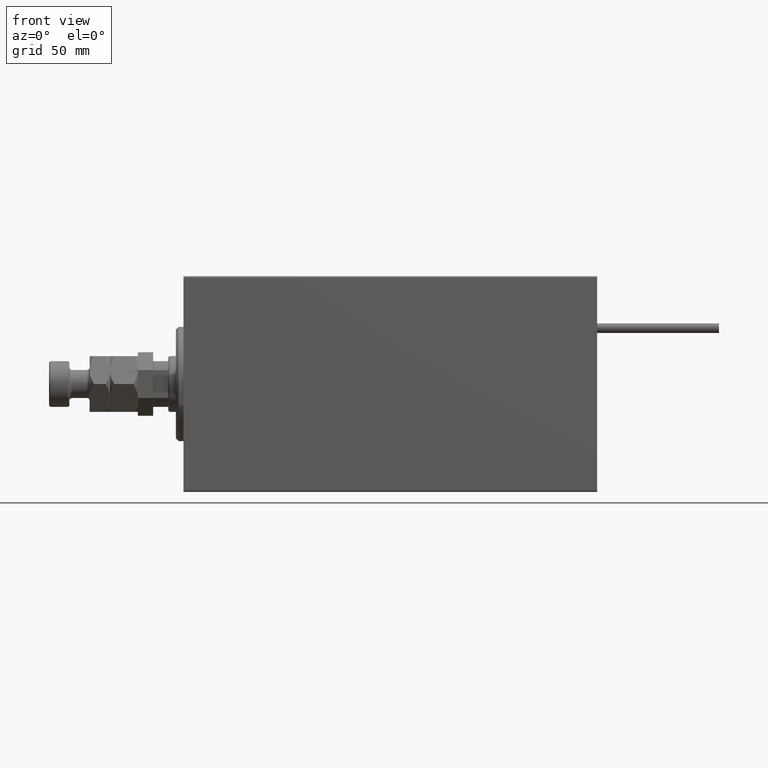
[diagram: clean part render]
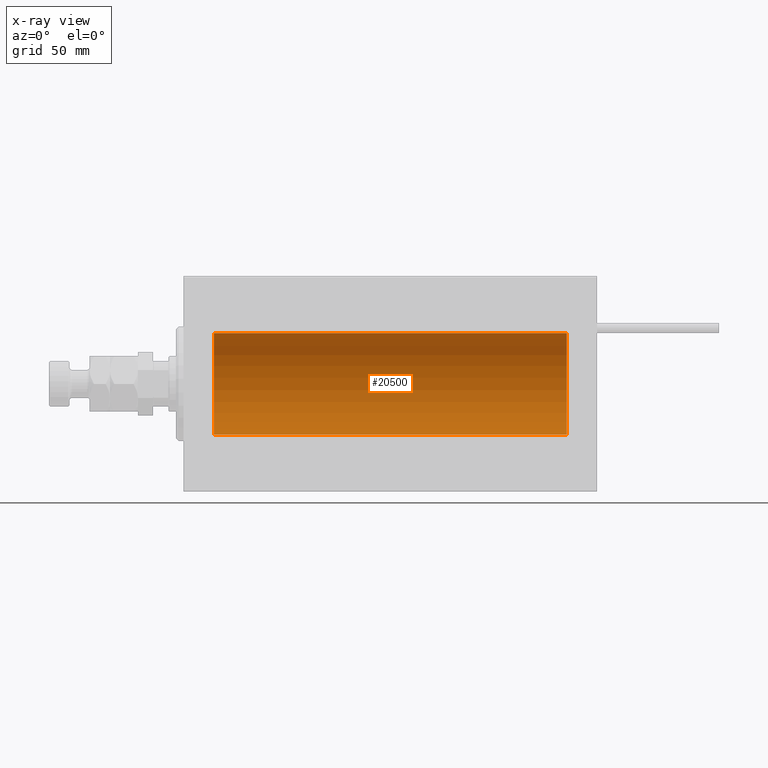
[diagram: x-ray — body ghosted, one internal face saturated and labeled with its STEP entity id]
A machine part, front view, then the same camera in x-ray: the body is ghosted and one INTERNAL B-rep face — a face not visible from any outside direction — is saturated and labeled: STEP entity #20500.
In plain terms, the highlighted cylindrical surface (partial cylindrical patch) has radius 20 mm, axis along (-1, -0, -0).
Its self-contained STEP definition (entity closure, byte-faithful):
#1322 = LINE ( 'NONE', #45768, #18485 ) ;
#2673 = ORIENTED_EDGE ( 'NONE', *, *, #51372, .F. ) ;
#2845 = DIRECTION ( 'NONE',  ( -1.000000000000000000, 0.000000000000000000, 0.000000000000000000 ) ) ;
#4320 = CARTESIAN_POINT ( 'NONE',  ( 151.0000000000000000, 0.000000000000000000, 20.00000000000000000 ) ) ;
#5158 = AXIS2_PLACEMENT_3D ( 'NONE', #40410, #36740, #29146 ) ;
#5597 = VERTEX_POINT ( 'NONE', #36177 ) ;
#6910 = ORIENTED_EDGE ( 'NONE', *, *, #33100, .T. ) ;
#8243 = FACE_OUTER_BOUND ( 'NONE', #33505, .T. ) ;
#8373 = DIRECTION ( 'NONE',  ( -1.000000000000000000, 0.000000000000000000, 0.000000000000000000 ) ) ;
#11279 = AXIS2_PLACEMENT_3D ( 'NONE', #18519, #2845, #18265 ) ;
#12691 = CIRCLE ( 'NONE', #15231, 20.00000000000000000 ) ;
#12936 = CYLINDRICAL_SURFACE ( 'NONE', #5158, 20.00000000000000000 ) ;
#14992 = EDGE_CURVE ( 'NONE', #5597, #45724, #40142, .T. ) ;
#15231 = AXIS2_PLACEMENT_3D ( 'NONE', #44205, #8373, #35591 ) ;
#18263 = VERTEX_POINT ( 'NONE', #40486 ) ;
#18265 = DIRECTION ( 'NONE',  ( 0.000000000000000000, 0.000000000000000000, 1.000000000000000000 ) ) ;
#18485 = VECTOR ( 'NONE', #21439, 1000.000000000000000 ) ;
#18519 = CARTESIAN_POINT ( 'NONE',  ( 12.00000000000001066, 0.000000000000000000, 0.000000000000000000 ) ) ;
#20061 = CARTESIAN_POINT ( 'NONE',  ( 12.00000000000001066, 2.449293598294706513E-15, -20.00000000000000000 ) ) ;
#20500 = ADVANCED_FACE ( 'NONE', ( #8243 ), #12936, .F. ) ;
#20790 = EDGE_CURVE ( 'NONE', #18263, #30034, #1322, .T. ) ;
#21439 = DIRECTION ( 'NONE',  ( -1.000000000000000000, -0.000000000000000000, -0.000000000000000000 ) ) ;
#23148 = CARTESIAN_POINT ( 'NONE',  ( 12.00000000000001066, 0.000000000000000000, 20.00000000000000000 ) ) ;
#23322 = VECTOR ( 'NONE', #36481, 1000.000000000000000 ) ;
#24435 = ORIENTED_EDGE ( 'NONE', *, *, #14992, .T. ) ;
#25707 = ORIENTED_EDGE ( 'NONE', *, *, #20790, .F. ) ;
#29146 = DIRECTION ( 'NONE',  ( 0.000000000000000000, 0.000000000000000000, 1.000000000000000000 ) ) ;
#30034 = VERTEX_POINT ( 'NONE', #20061 ) ;
#33100 = EDGE_CURVE ( 'NONE', #45724, #30034, #42212, .T. ) ;
#33505 = EDGE_LOOP ( 'NONE', ( #25707, #2673, #24435, #6910 ) ) ;
#35591 = DIRECTION ( 'NONE',  ( 0.000000000000000000, 0.000000000000000000, 1.000000000000000000 ) ) ;
#36177 = CARTESIAN_POINT ( 'NONE',  ( 151.0000000000000000, 0.000000000000000000, 20.00000000000000000 ) ) ;
#36481 = DIRECTION ( 'NONE',  ( -1.000000000000000000, -0.000000000000000000, -0.000000000000000000 ) ) ;
#36740 = DIRECTION ( 'NONE',  ( -1.000000000000000000, -0.000000000000000000, -0.000000000000000000 ) ) ;
#40142 = LINE ( 'NONE', #4320, #23322 ) ;
#40410 = CARTESIAN_POINT ( 'NONE',  ( 151.0000000000000000, 0.000000000000000000, 0.000000000000000000 ) ) ;
#40486 = CARTESIAN_POINT ( 'NONE',  ( 151.0000000000000000, 2.449293598294706513E-15, -20.00000000000000000 ) ) ;
#42212 = CIRCLE ( 'NONE', #11279, 20.00000000000000000 ) ;
#44205 = CARTESIAN_POINT ( 'NONE',  ( 151.0000000000000000, 0.000000000000000000, 0.000000000000000000 ) ) ;
#45724 = VERTEX_POINT ( 'NONE', #23148 ) ;
#45768 = CARTESIAN_POINT ( 'NONE',  ( 151.0000000000000000, 2.449293598294706513E-15, -20.00000000000000000 ) ) ;
#51372 = EDGE_CURVE ( 'NONE', #5597, #18263, #12691, .T. ) ;